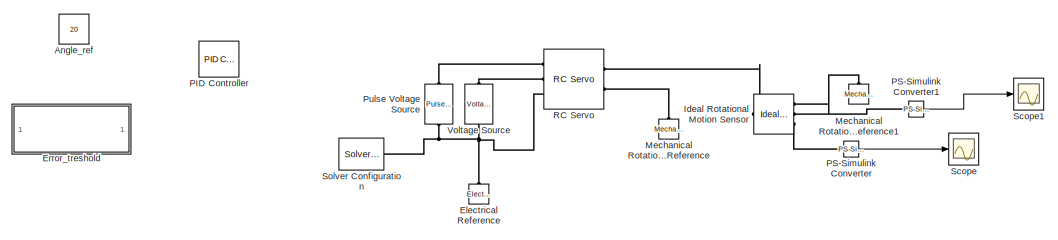
[diagram: root canvas - part 1/3, top center region]
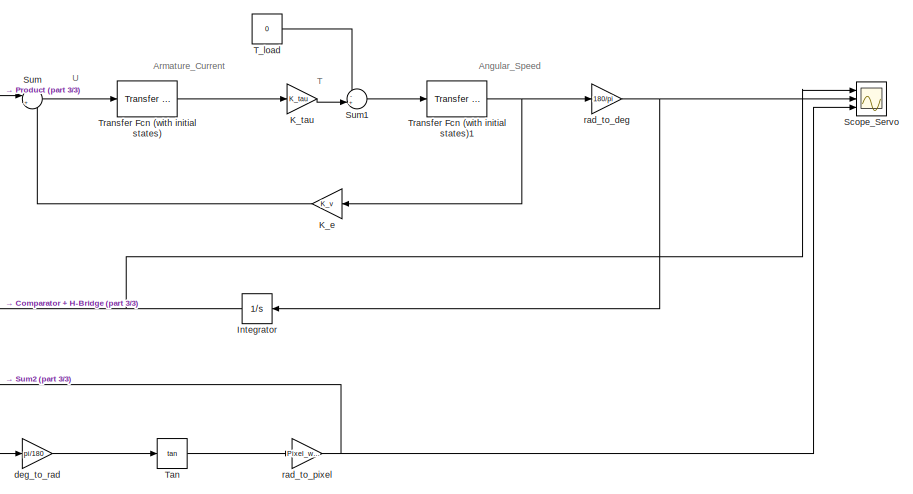
[diagram: root canvas - part 2/3, middle right region]
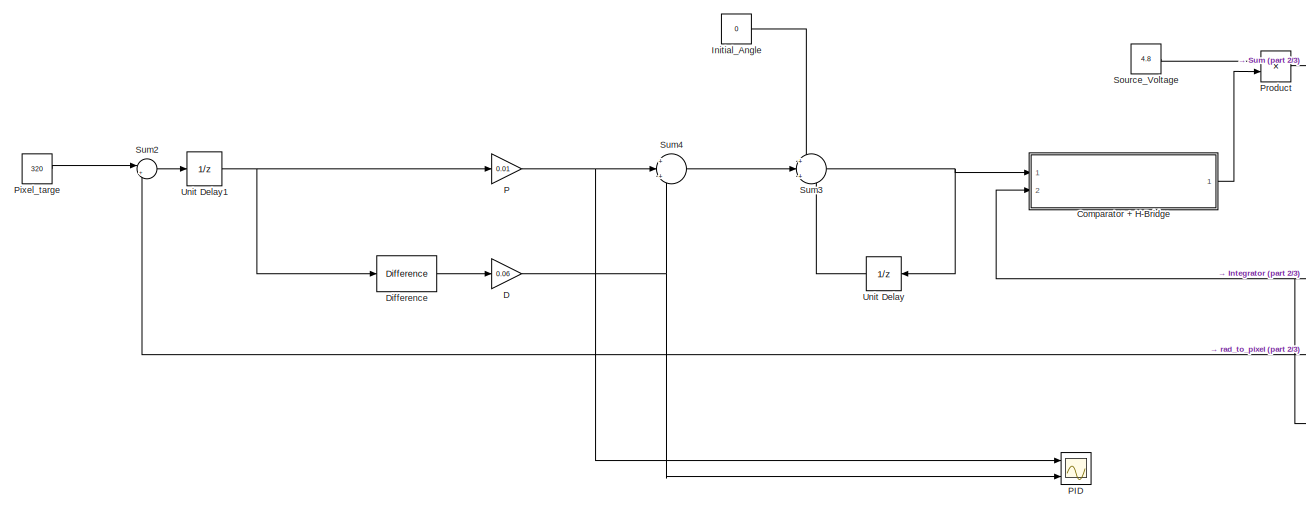
[diagram: root canvas - part 3/3, bottom left region]
MODEL slx_10a223750d9c
KIND model
CONFIG AbsTol = auto
CONFIG EnableMultiTasking = off
CONFIG FixedStep = 0.001
CONFIG MaxStep = auto
CONFIG MinStep = auto
CONFIG RelTol = 1e-3
CONFIG SampleTimeConstraint = Unconstrained
CONFIG SolverName = VariableStepAuto
CONFIG StartTime = 0.0
CONFIG StopTime = 1
BLOCK [Constant] Angle_ref
  Commented = on
  Value = 20
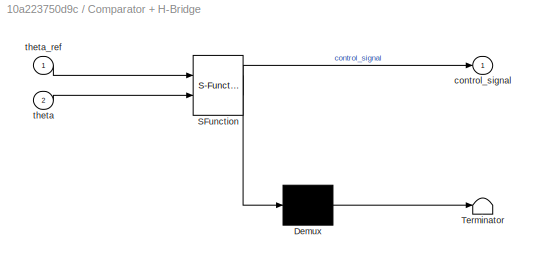
BLOCK [SubSystem] Comparator + H-Bridge 
  ErrorFcn = Stateflow.Translate.translate
  PermitHierarchicalResolution = ExplicitOnly
  Ports = [2, 1]
  RequestExecContextInheritance = off
  SFBlockType = MATLAB Function
  TreatAsAtomicUnit = on
BLOCK [Demux] Comparator + H-Bridge / Demux 
  Outputs = 1
  Ports = [1, 1]
BLOCK [S-Function] Comparator + H-Bridge / SFunction 
  EnableBusSupport = on
  FunctionName = sf_sfun
  PortCounts = [2 2]
  Ports = [2, 2]
  SFcnIsStateOwnerBlock = off
  SFunctionDeploymentMode = off
  Tag = Stateflow S-Function 2
BLOCK [Terminator] Comparator + H-Bridge / Terminator 
BLOCK [Outport] Comparator + H-Bridge /control_signal
BLOCK [Inport] Comparator + H-Bridge /theta
  Port = 2
BLOCK [Inport] Comparator + H-Bridge /theta_ref
BLOCK [Gain] D
  Gain = 0.06
BLOCK [Reference] Difference  REF=simulink/Discrete/Difference
  Ports = [1, 1]
  SourceBlock = simulink/Discrete/Difference
  SourceProductBaseCode = SL
  SourceType = Difference
BLOCK [Reference] Electrical Reference  REF=fl_lib/Electrical/Electrical Elements/Electrical Reference
  Commented = on
  NameLocation = right
  Ports = [0, 0, 0, 0, 0, 1]
  SourceBlock = fl_lib/Electrical/Electrical Elements/Electrical Reference
  SourceProductBaseCode = PW,SS,VE
  SourceType = Electrical Reference
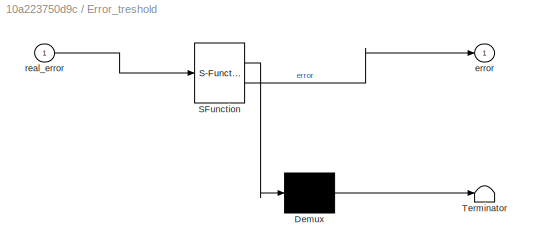
BLOCK [SubSystem] Error_treshold
  Commented = on
  ErrorFcn = Stateflow.Translate.translate
  PermitHierarchicalResolution = ExplicitOnly
  Ports = [1, 1]
  RequestExecContextInheritance = off
  SFBlockType = MATLAB Function
  TreatAsAtomicUnit = on
BLOCK [Demux] Error_treshold/ Demux 
  Outputs = 1
  Ports = [1, 1]
BLOCK [S-Function] Error_treshold/ SFunction 
  EnableBusSupport = on
  FunctionName = sf_sfun
  PortCounts = [1 2]
  Ports = [1, 2]
  SFcnIsStateOwnerBlock = off
  SFunctionDeploymentMode = off
  Tag = Stateflow S-Function 1
BLOCK [Terminator] Error_treshold/ Terminator 
BLOCK [Outport] Error_treshold/error
BLOCK [Inport] Error_treshold/real_error
BLOCK [Reference] Ideal Rotational Motion Sensor  REF=fl_lib/Mechanical/Mechanical Sensors/Ideal Rotational
Motion Sensor
  Commented = on
  Ports = [0, 0, 0, 0, 0, 1, 3]
  SourceBlock = fl_lib/Mechanical/Mechanical Sensors/Ideal Rotational\nMotion Sensor
  SourceProductBaseCode = PW,SS,VE
  SourceType = Ideal Rotational\nMotion Sensor
BLOCK [Constant] Initial_Angle
  Value = 0
BLOCK [Integrator] Integrator
  NameLocation = top
  Ports = [1, 1]
BLOCK [Gain] K_e
  Gain = K_v
  NameLocation = top
BLOCK [Gain] K_tau
  Gain = K_tau
BLOCK [Reference] Mechanical Rotational Reference  REF=fl_lib/Mechanical/Rotational Elements/Mechanical
Rotational Reference
  Commented = on
  NameLocation = right
  Ports = [0, 0, 0, 0, 0, 1]
  SourceBlock = fl_lib/Mechanical/Rotational Elements/Mechanical\nRotational Reference
  SourceProductBaseCode = PW,SS,VE
  SourceType = Mechanical\nRotational Reference
BLOCK [Reference] Mechanical Rotational Reference1  REF=fl_lib/Mechanical/Rotational Elements/Mechanical
Rotational Reference
  Commented = on
  NameLocation = right
  Ports = [0, 0, 0, 0, 0, 1]
  SourceBlock = fl_lib/Mechanical/Rotational Elements/Mechanical\nRotational Reference
  SourceProductBaseCode = PW,SS,VE
  SourceType = Mechanical\nRotational Reference
BLOCK [Gain] P
  Gain = 0.01
BLOCK [Scope] PID
  Floating = off
  NumInputPorts = 3
  Ports = [3]
  ScopeSpecificationString = Simulink.scopes.TimeScopeBlockCfg('CurrentConfiguration', extmgr.ConfigurationSet(extmgr.Configuration('Core','General UI',true),extmgr.Configuration('Core','Source UI',true),extmgr.Configuration('Sources','WiredSimulink',true,'DataLoggingVariableName','ScopeData1'),extmgr.Configuration('Visuals','Time Domain',true,'SerializedDisplays',{struct('MinYLimReal','-0.4','MaxYLimReal','3.6','YLabelReal',...<+3047ch>
BLOCK [Reference] PID Controller  REF=slpidlib/PID Controller
  Commented = on
  Ports = [1, 1]
  SourceBlock = slpidlib/PID Controller
  SourceProductBaseCode = SL
  SourceType = PID 1dof
BLOCK [Reference] PS-Simulink Converter  REF=nesl_utility/PS-Simulink
Converter
  Commented = on
  Ports = [0, 1, 0, 0, 0, 1]
  SourceBlock = nesl_utility/PS-Simulink\nConverter
  SourceProductBaseCode = SS,PW,VE
  SourceType = PS-Simulink\nConverter
BLOCK [Reference] PS-Simulink Converter1  REF=nesl_utility/PS-Simulink
Converter
  Commented = on
  Ports = [0, 1, 0, 0, 0, 1]
  SourceBlock = nesl_utility/PS-Simulink\nConverter
  SourceProductBaseCode = SS,PW,VE
  SourceType = PS-Simulink\nConverter
BLOCK [Constant] Pixel_targe
  Value = 320
BLOCK [Product] Product
  Ports = [2, 1]
BLOCK [Reference] Pulse Voltage Source  REF=ee_lib/Additional
Components/SPICE Sources/Pulse Voltage Source
  Commented = on
  NameLocation = right
  Ports = [0, 0, 0, 0, 0, 1, 1]
  SourceBlock = ee_lib/Additional\nComponents/SPICE Sources/Pulse Voltage Source
  SourceProductBaseCode = PS
  SourceType = Pulse Voltage Source
BLOCK [Reference] RC Servo  REF=ee_lib/Electromechanical/Brushed Motors/RC Servo
  Commented = on
  Ports = [0, 0, 0, 0, 0, 3, 2]
  SourceBlock = ee_lib/Electromechanical/Brushed Motors/RC Servo
  SourceProductBaseCode = PS
  SourceType = RC Servo
BLOCK [Scope] Scope
  Commented = on
  Floating = off
  NumInputPorts = 1
  Ports = [1]
  ScopeSpecificationString = Simulink.scopes.TimeScopeBlockCfg('CurrentConfiguration', extmgr.ConfigurationSet(extmgr.Configuration('Core','General UI',true),extmgr.Configuration('Core','Source UI',true),extmgr.Configuration('Sources','WiredSimulink',true),extmgr.Configuration('Visuals','Time Domain',true,'SerializedDisplays',{struct('MinYLimReal','-100.12988','MaxYLimReal','11.12554','YLabelReal','','MinYLimMag',' 0.00000','...<+1728ch>
BLOCK [Scope] Scope1
  Commented = on
  Floating = off
  NumInputPorts = 1
  Ports = [1]
  ScopeSpecificationString = Simulink.scopes.TimeScopeBlockCfg('CurrentConfiguration', extmgr.ConfigurationSet(extmgr.Configuration('Core','General UI',true),extmgr.Configuration('Core','Source UI',true),extmgr.Configuration('Sources','WiredSimulink',true,'DataLoggingVariableName','ScopeData2'),extmgr.Configuration('Visuals','Time Domain',true,'SerializedDisplays',{struct('MinYLimReal','-337.50793','MaxYLimReal','37.50286','Y...<+1412ch>
BLOCK [Scope] Scope_Servo
  Floating = off
  NumInputPorts = 3
  Ports = [3]
  ScopeSpecificationString = Simulink.scopes.TimeScopeBlockCfg('CurrentConfiguration', extmgr.ConfigurationSet(extmgr.Configuration('Core','General UI',true),extmgr.Configuration('Core','Source UI',true),extmgr.Configuration('Sources','WiredSimulink',true,'DataLoggingVariableName','ScopeData1'),extmgr.Configuration('Visuals','Time Domain',true,'SerializedDisplays',{struct('MinYLimReal','-3.21851','MaxYLimReal','28.96663','YLa...<+3162ch>
BLOCK [Reference] Solver Configuration  REF=nesl_utility/Solver
Configuration
  Commented = on
  Ports = [0, 0, 0, 0, 0, 0, 1]
  SourceBlock = nesl_utility/Solver\nConfiguration
  SourceProductBaseCode = SS,PW,VE
  SourceType = Solver\nConfiguration
BLOCK [Constant] Source_Voltage
  Value = 4.8
BLOCK [Sum] Sum
  Inputs = |+-
  Ports = [2, 1]
BLOCK [Sum] Sum1
  Inputs = -+|
  Ports = [2, 1]
BLOCK [Sum] Sum2
  Inputs = |+-
  Ports = [2, 1]
BLOCK [Sum] Sum3
  Inputs = +|+|+
  Ports = [3, 1]
BLOCK [Sum] Sum4
  Inputs = +|+|+
  Ports = [3, 1]
BLOCK [Constant] T_load
  Value = 0
BLOCK [Trigonometry] Tan
  Operator = tan
  Ports = [1, 1]
BLOCK [Reference] Transfer Fcn (with initial states)  REF=simulink_extras/Additional
Linear/Transfer Fcn
(with initial states)
  Ports = [1, 1]
  SourceBlock = simulink_extras/Additional\nLinear/Transfer Fcn\n(with initial states)
  SourceProductBaseCode = SL
  SourceType = Transfer Function with Initial States
BLOCK [Reference] Transfer Fcn (with initial states)1  REF=simulink_extras/Additional
Linear/Transfer Fcn
(with initial states)
  Ports = [1, 1]
  SourceBlock = simulink_extras/Additional\nLinear/Transfer Fcn\n(with initial states)
  SourceProductBaseCode = SL
  SourceType = Transfer Function with Initial States
BLOCK [UnitDelay] Unit Delay
  HasFrameUpgradeWarning = on
  NameLocation = top
  SampleTime = 0.01
BLOCK [UnitDelay] Unit Delay1
  HasFrameUpgradeWarning = on
  SampleTime = 0.01
BLOCK [Reference] Voltage Source  REF=ee_lib/Sources/Voltage Source
  Commented = on
  NameLocation = right
  Ports = [0, 0, 0, 0, 0, 1, 1]
  SourceBlock = ee_lib/Sources/Voltage Source
  SourceProductBaseCode = PS
  SourceType = Voltage Source
BLOCK [Gain] deg_to_rad
  Gain = pi/180
BLOCK [Gain] rad_to_deg
  Gain = 180/pi
BLOCK [Gain] rad_to_pixel
  Gain = Pixel_w/(2 * tan((FoV_w * pi/180)/2))
ANNOTATION (root): Angular_Speed
ANNOTATION (root): Armature_Current
ANNOTATION (root): T
ANNOTATION (root): U
LINE Comparator + H-Bridge :1 -> Product:2
NET D:1 -> PID:3, Sum4:3
LINE Difference:1 -> D:1
LINE Initial_Angle:1 -> Sum3:1
NET Integrator:1 -> Comparator + H-Bridge :2, Scope_Servo:1, deg_to_rad:1
LINE K_e:1 -> Sum:2
LINE K_tau:1 -> Sum1:2
NET P:1 -> PID:1, Sum4:2
LINE PS-Simulink Converter1:1 -> Scope1:1
LINE PS-Simulink Converter:1 -> Scope:1
LINE Pixel_targe:1 -> Sum2:1
LINE Product:1 -> Sum:1
LINE Source_Voltage:1 -> Product:1
LINE Sum1:1 -> Transfer Fcn (with initial states)1:1
LINE Sum2:1 -> Unit Delay1:1
NET Sum3:1 -> Comparator + H-Bridge :1, Unit Delay:1
LINE Sum4:1 -> Sum3:2
LINE Sum:1 -> Transfer Fcn (with initial states):1
LINE T_load:1 -> Sum1:1
LINE Tan:1 -> rad_to_pixel:1
NET Transfer Fcn (with initial states)1:1 -> K_e:1, rad_to_deg:1
LINE Transfer Fcn (with initial states):1 -> K_tau:1
NET Unit Delay1:1 -> Difference:1, P:1
LINE Unit Delay:1 -> Sum3:3
LINE deg_to_rad:1 -> Tan:1
NET rad_to_deg:1 -> Integrator:1, Scope_Servo:2
NET rad_to_pixel:1 -> Scope_Servo:3, Sum2:2
PNET net1: Electrical Reference:LConn1 -- Pulse Voltage Source:RConn1 -- RC Servo:LConn3 -- Solver Configuration:RConn1 -- Voltage Source:RConn1
PLINE Ideal Rotational Motion Sensor:LConn1 -- RC Servo:RConn1
PLINE Ideal Rotational Motion Sensor:RConn1 -- Mechanical Rotational Reference1:LConn1
PLINE Ideal Rotational Motion Sensor:RConn2 -- PS-Simulink Converter1:LConn1
PLINE Ideal Rotational Motion Sensor:RConn3 -- PS-Simulink Converter:LConn1
PLINE Mechanical Rotational Reference:LConn1 -- RC Servo:RConn2
PLINE Pulse Voltage Source:LConn1 -- RC Servo:LConn1
PLINE RC Servo:LConn2 -- Voltage Source:LConn1
note: NET lines group one-source signal fan-out (src -> all destinations, sorted); 1:1 wires keep LINE; PNET lines group multi-terminal physical nets as a canonical sorted terminal list (undirected conserving connections); 2-terminal nets keep the pairwise PLINE form
CHART Comparator + H-Bridge  states=1 transitions=1
  STATE_LABEL 'eML_blk_kernel()'
  STATE_LABEL 'SCRIPT:\nfunction control_signal = comp(theta_ref, theta)\n\ncontrol_signal = 0;\n\nif(theta_ref < theta)\n    control_signal = -1;\nend\n\nif(theta_ref > theta)\n    control_signal = 1;\nend\n\nif(abs(theta_ref - theta) < 1)\n    control_signal = 0;\nend'
CHART Error_treshold states=1 transitions=1
  STATE_LABEL 'eML_blk_kernel()'
  STATE_LABEL 'SCRIPT:\nfunction  error = fcn(real_error)\n\nerror = real_error;\n\nif(abs(real_error) < 16)\n    error = 0;\nend'
CHART  states=0 transitions=0
CHART  states=0 transitions=0
